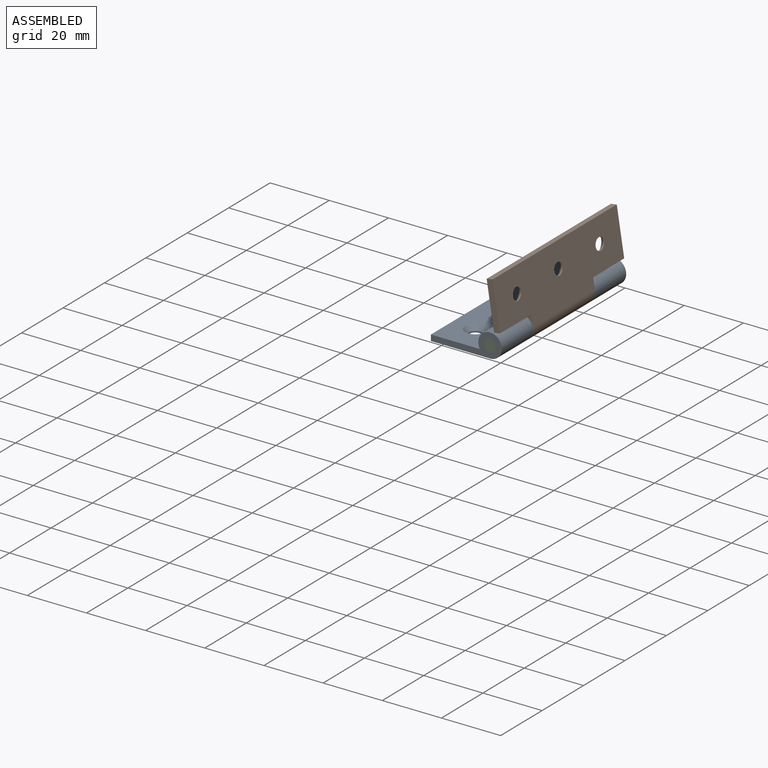
[diagram: assembled view]
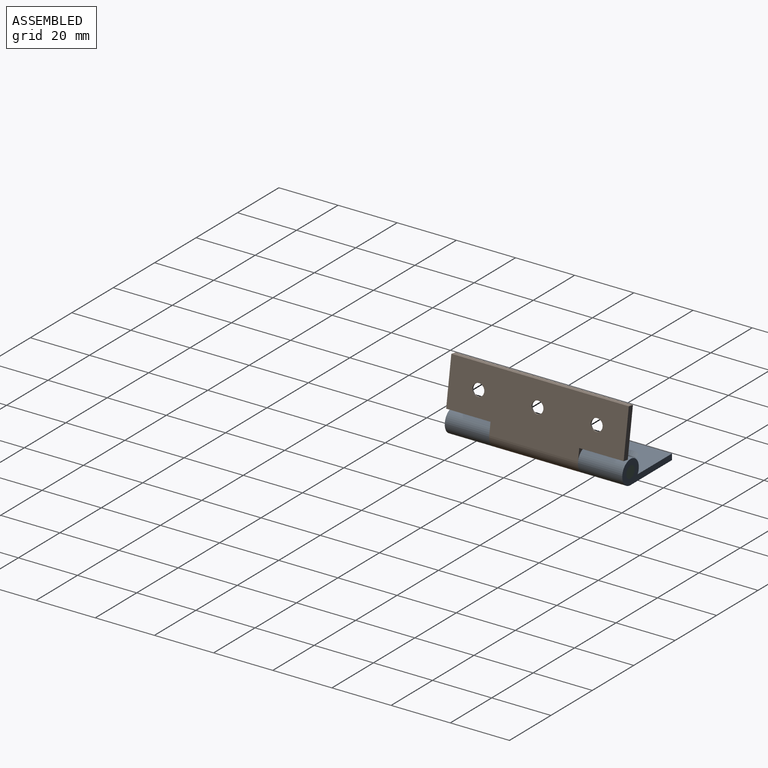
[diagram: assembled view, second angle]
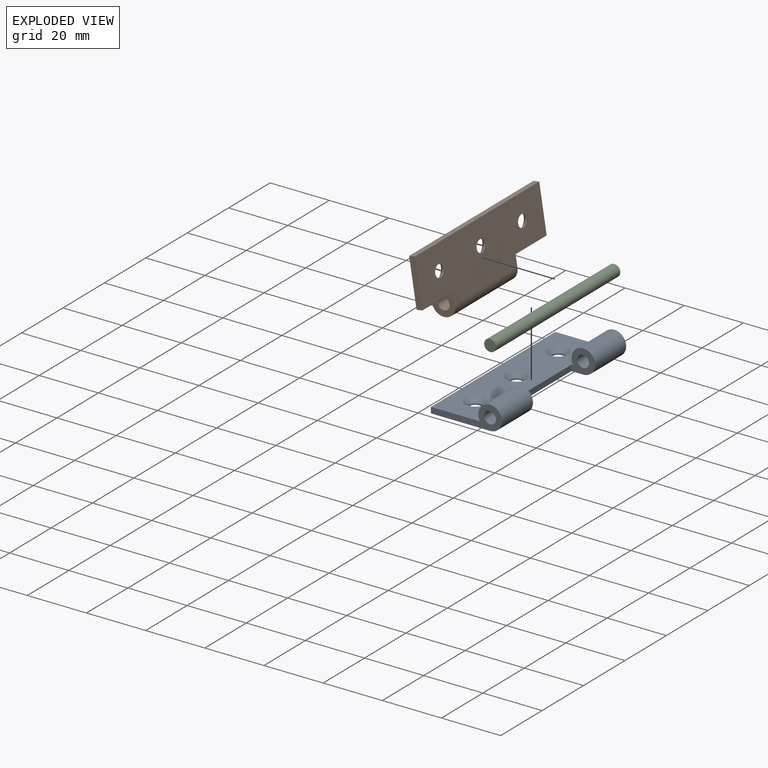
[diagram: exploded view]
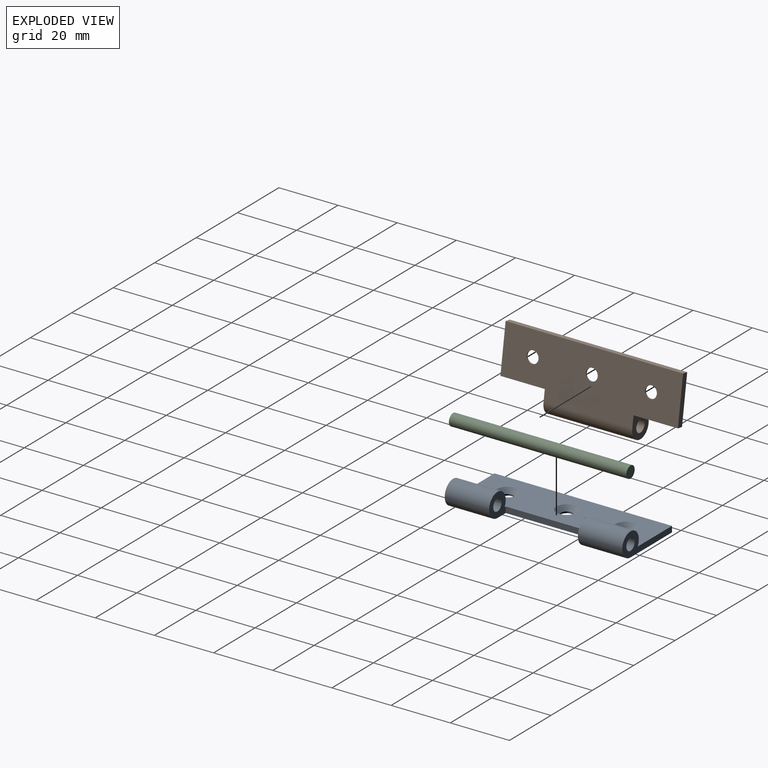
[diagram: exploded view, second angle]
ASSEMBLY  parts=3 mates=2
PART A: 18 faces, bbox 24x60x8 mm
  f0: plane 60x20mm, normal (0,0,-1), area 1042.3mm2, adj f1,f2,f6,f7,f8,f9,f10,f11
  f1: cylinder r=4mm len=15mm, axis (0,1,0), area 314.2mm2, adj f0,f3,f8,f9
  f2: cylinder r=4mm len=15mm, axis (0,1,0), area 314.2mm2, adj f0,f3,f7,f10
  f3: plane 60x16.54mm, normal (0,0,1), area 860.6mm2, adj f1,f2,f6,f7,f8,f9,f10,f11
  f4: cylinder r=2mm len=15mm, axis (0,1,0), area 188.5mm2, adj f8,f9
  f5: cylinder r=2mm len=15mm, axis (0,1,0), area 188.5mm2, adj f7,f10
  f6: plane 60x2mm, normal (-1,0,0), area 120mm2, adj f0,f3,f7,f8
  f7: plane 24x8mm, normal (0,-1,0), area 72.8mm2, adj f0,f2,f3,f5,f6
  f8: plane 24x8mm, normal (0,1,0), area 72.8mm2, adj f0,f1,f3,f4,f6
  f9: plane 8x8mm, normal (0,-1,0), area 40.8mm2, adj f0,f1,f3,f4,f11
  f10: plane 8x8mm, normal (0,1,0), area 40.8mm2, adj f0,f2,f3,f5,f11
  f11: plane 30x2mm, normal (1,0,0), area 60mm2, adj f0,f3,f9,f10
  f12: cylinder r=2mm len=4mm, axis (0,0,-1), area 6.3mm2, adj f0,f15
  f13: cylinder r=2mm len=4mm, axis (0,0,-1), area 6.3mm2, adj f0,f16
  f14: cylinder r=2mm len=4mm, axis (0,0,-1), area 6.3mm2, adj f0,f17
  f15: cone r=2mm half-angle=45deg, axis (0,0,1), area 36.7mm2, adj f3,f12
  f16: cone r=2mm half-angle=45deg, axis (0,0,1), area 36.7mm2, adj f3,f13
  f17: cone r=2mm half-angle=45deg, axis (0,0,1), area 36.7mm2, adj f3,f14
PART B: 17 faces, bbox 24x60x8 mm
  f0: cylinder r=4mm len=30mm, axis (0,1,0), area 628.3mm2, adj f2,f3,f6,f8
  f1: plane 16x2mm, normal (0,1,0), area 32mm2, adj f2,f3,f4,f7
  f2: plane 60x20mm, normal (0,0,-1), area 1042.3mm2, adj f0,f1,f4,f5,f6,f7,f8,f9
  f3: plane 60x16.54mm, normal (0,0,1), area 860.6mm2, adj f0,f1,f4,f5,f6,f7,f8,f9
  f4: plane 60x2mm, normal (-1,0,0), area 120mm2, adj f1,f2,f3,f5
  f5: plane 16x2mm, normal (0,-1,0), area 32mm2, adj f2,f3,f4,f9
  f6: plane 8x8mm, normal (0,1,0), area 40.8mm2, adj f0,f2,f3,f7,f10
  f7: plane 15x2mm, normal (1,0,0), area 30mm2, adj f1,f2,f3,f6
  f8: plane 8x8mm, normal (0,-1,0), area 40.8mm2, adj f0,f2,f3,f9,f10
  f9: plane 15x2mm, normal (1,0,0), area 30mm2, adj f2,f3,f5,f8
  f10: cylinder r=2mm len=30mm, axis (0,1,0), area 377mm2, adj f6,f8
  f11: cylinder r=2mm len=4mm, axis (0,0,-1), area 6.3mm2, adj f2,f14
  f12: cylinder r=2mm len=4mm, axis (0,0,-1), area 6.3mm2, adj f2,f15
  f13: cylinder r=2mm len=4mm, axis (0,0,-1), area 6.3mm2, adj f2,f16
  f14: cone r=2mm half-angle=45deg, axis (0,0,1), area 36.7mm2, adj f3,f11
  f15: cone r=2mm half-angle=45deg, axis (0,0,1), area 36.7mm2, adj f3,f12
  f16: cone r=2mm half-angle=45deg, axis (0,0,1), area 36.7mm2, adj f3,f13
PART C: 3 faces, bbox 4x60x4 mm
  f0: cylinder r=2mm len=60mm, axis (0,1,0), area 754mm2, adj f1,f2
  f1: plane 4x4mm, normal (0,-1,0), area 12.6mm2, adj f0
  f2: plane 4x4mm, normal (0,1,0), area 12.6mm2, adj f0
PLACE A t=(4.4,0,-12.18)mm fixed
PLACE B rot(axis=(0.76,0,-0.65),180deg) t=(4.4,-60,-12.18)mm
PLACE C t=(4.4,0,-12.18)mm
MATE revolute B.f10 <-> A.f4  axis (0,1,0) through (4.4,-15,-12.18)mm
MATE revolute C.f0 <-> A.f4  axis (0,-1,0) through (4.4,-60,-12.18)mm
